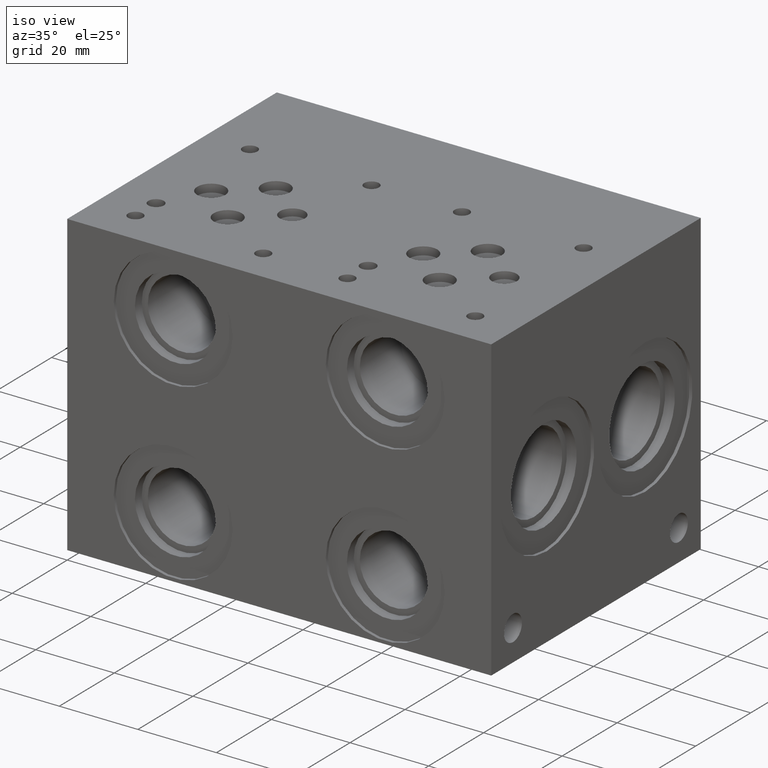
[diagram: clean part render]
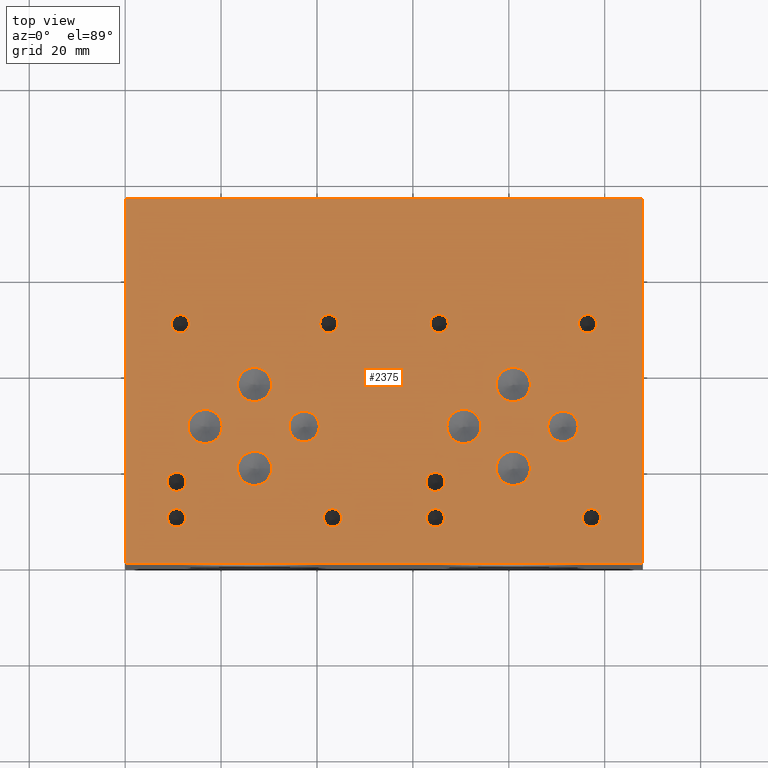
[diagram: tour spotlight — one face highlighted and labeled with its STEP entity id]
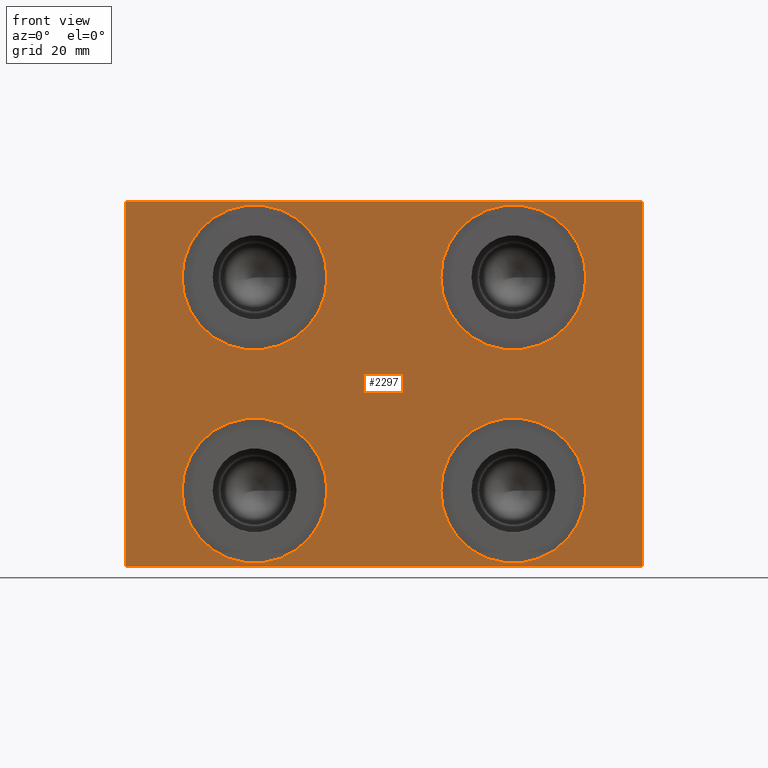
[diagram: tour spotlight — one face highlighted and labeled with its STEP entity id]
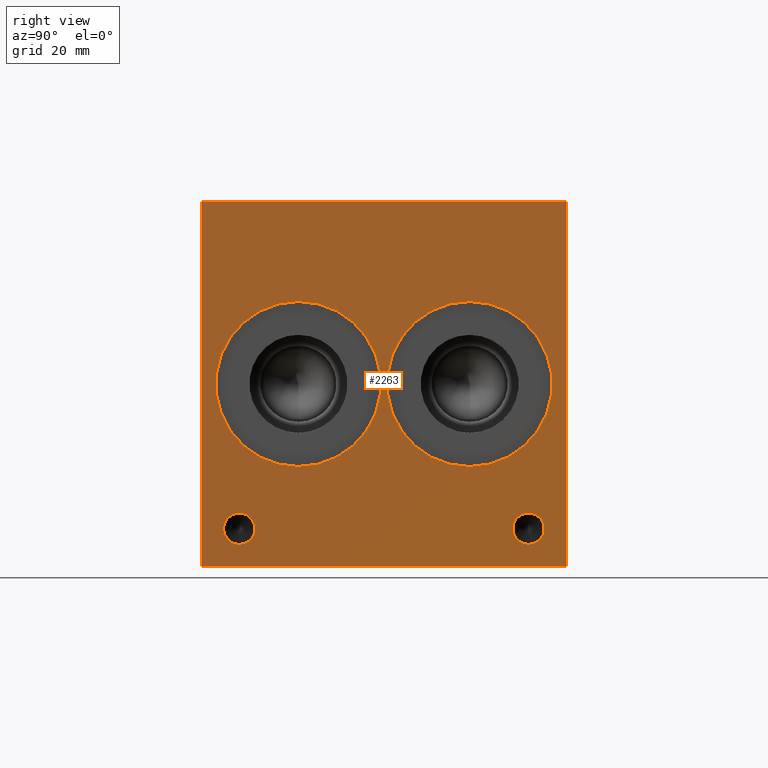
[diagram: tour spotlight — one face highlighted and labeled with its STEP entity id]
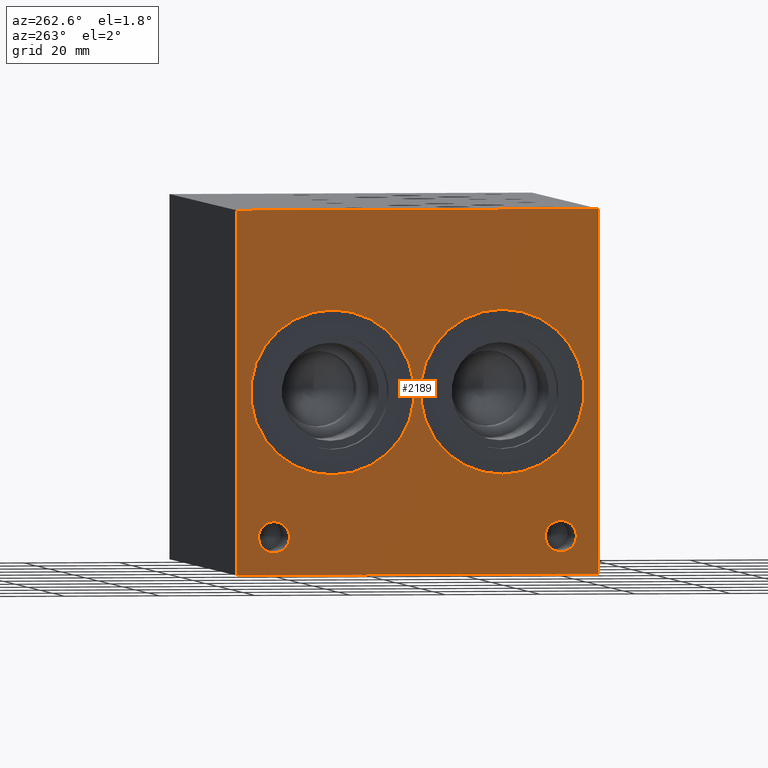
[diagram: tour spotlight — one face highlighted and labeled with its STEP entity id]
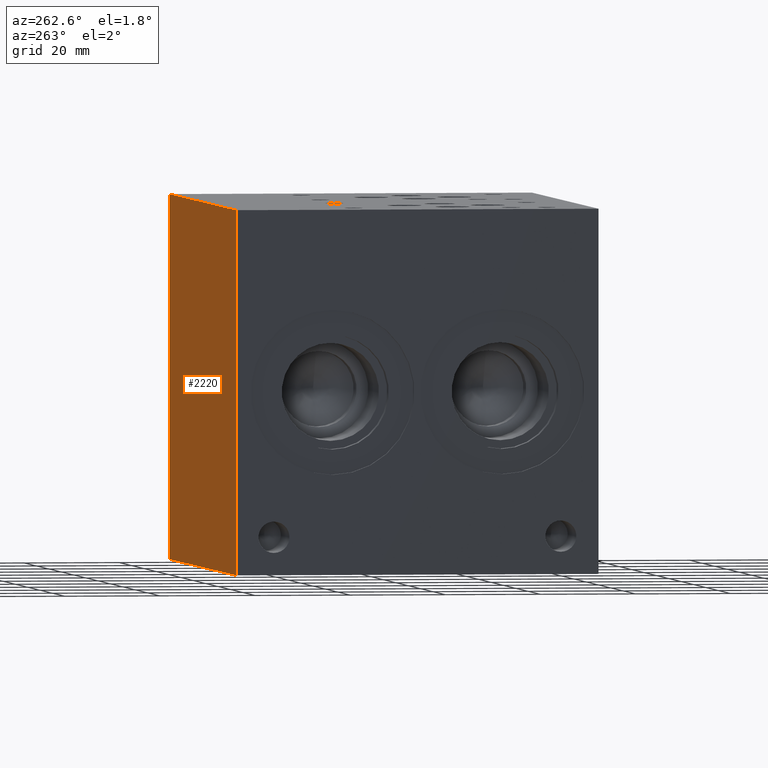
[diagram: tour spotlight — one face highlighted and labeled with its STEP entity id]
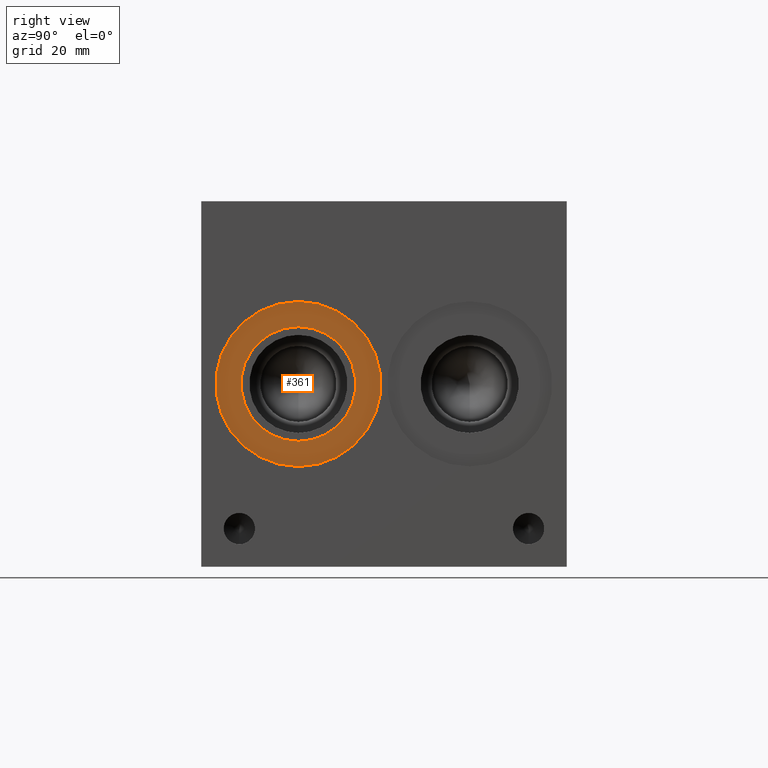
[diagram: tour spotlight — one face highlighted and labeled with its STEP entity id]
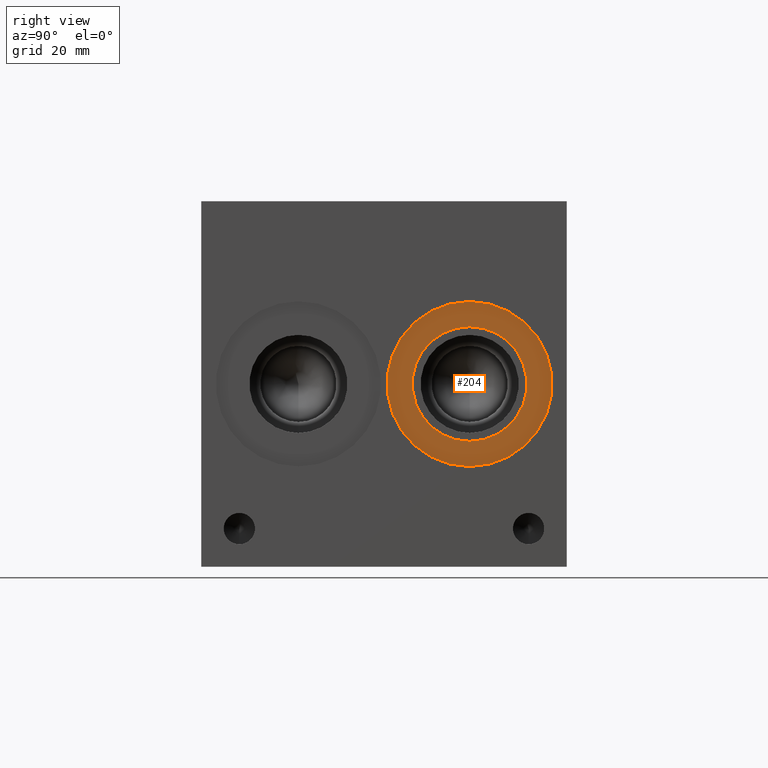
[diagram: tour spotlight — one face highlighted and labeled with its STEP entity id]
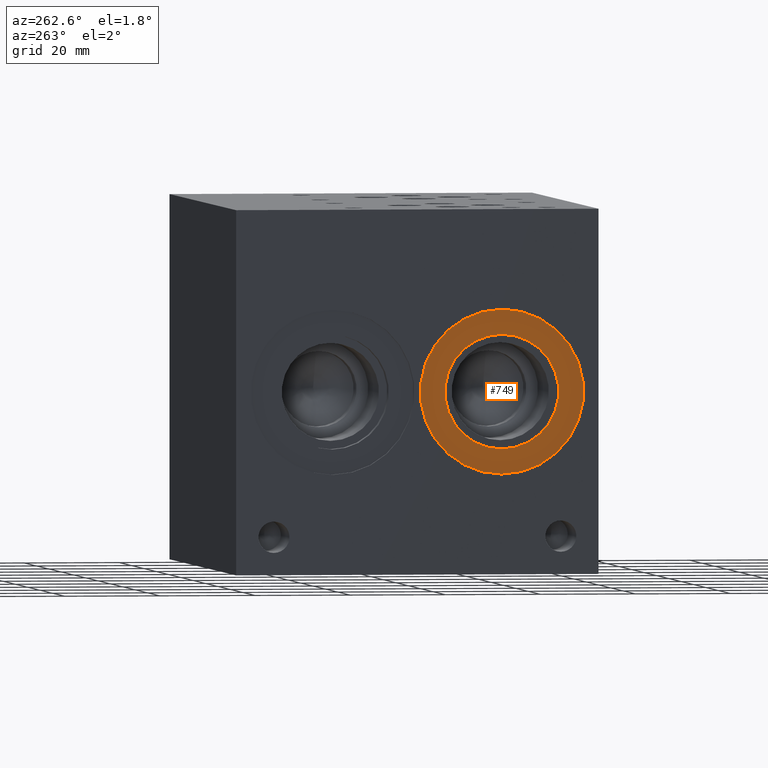
[diagram: tour spotlight — one face highlighted and labeled with its STEP entity id]
A machine part: a face-by-face anatomy tour. The part has 114 B-rep faces; the first image is the clean iso view, then the 8 largest visible faces are spotlighted one at a time (largest first), each with its STEP entity span.

Face 1 — top view, entity #2375. In plain terms, the highlighted planar face has unit normal (0, 0, 1).
Definition (entity closure, byte-faithful):
#1494=CARTESIAN_POINT('',(84.518500000000003,19.837400000000002,76.200000000000017));
#1495=VERTEX_POINT('',#1494);
#1496=CARTESIAN_POINT('',(80.949799999999996,19.837400000000002,76.200000000000017));
#1497=DIRECTION('',(0.0,0.0,-1.0));
#1498=DIRECTION('',(1.0,0.0,0.0));
#1499=AXIS2_PLACEMENT_3D('',#1496,#1497,#1498);
#1500=CIRCLE('',#1499,3.568700000000007);
#1501=EDGE_CURVE('',#1495,#1495,#1500,.T.);
#1531=CARTESIAN_POINT('',(84.518500000000003,37.312600000000003,76.200000000000017));
#1532=VERTEX_POINT('',#1531);
#1533=CARTESIAN_POINT('',(80.949799999999996,37.312600000000003,76.200000000000017));
#1534=DIRECTION('',(0.0,0.0,-1.0));
#1535=DIRECTION('',(1.0,0.0,0.0));
#1536=AXIS2_PLACEMENT_3D('',#1533,#1534,#1535);
#1537=CIRCLE('',#1536,3.568700000000007);
#1538=EDGE_CURVE('',#1532,#1532,#1537,.T.);
#1568=CARTESIAN_POINT('',(94.462600000000009,28.574999999999999,76.200000000000017));
#1569=VERTEX_POINT('',#1568);
#1570=CARTESIAN_POINT('',(91.287599999999998,28.574999999999999,76.200000000000017));
#1571=DIRECTION('',(0.0,0.0,-1.0));
#1572=DIRECTION('',(1.0,0.0,0.0));
#1573=AXIS2_PLACEMENT_3D('',#1570,#1571,#1572);
#1574=CIRCLE('',#1573,3.175000000000008);
#1575=EDGE_CURVE('',#1569,#1569,#1574,.T.);
#1605=CARTESIAN_POINT('',(74.206099999999992,28.574999999999999,76.200000000000017));
#1606=VERTEX_POINT('',#1605);
#1607=CARTESIAN_POINT('',(70.6374,28.574999999999999,76.200000000000017));
#1608=DIRECTION('',(0.0,0.0,-1.0));
#1609=DIRECTION('',(1.0,0.0,0.0));
#1610=AXIS2_PLACEMENT_3D('',#1607,#1608,#1609);
#1611=CIRCLE('',#1610,3.568699999999998);
#1612=EDGE_CURVE('',#1606,#1606,#1611,.T.);
#1642=CARTESIAN_POINT('',(66.675000000000011,17.018000000000001,76.200000000000017));
#1643=VERTEX_POINT('',#1642);
#1644=CARTESIAN_POINT('',(64.693799999999996,17.018000000000001,76.200000000000017));
#1645=DIRECTION('',(0.0,0.0,-1.0));
#1646=DIRECTION('',(1.0,0.0,0.0));
#1647=AXIS2_PLACEMENT_3D('',#1644,#1645,#1646);
#1648=CIRCLE('',#1647,1.981200000000003);
#1649=EDGE_CURVE('',#1643,#1643,#1648,.T.);
#1679=CARTESIAN_POINT('',(66.586100000000002,9.525000000000002,76.200000000000017));
#1680=VERTEX_POINT('',#1679);
#1681=CARTESIAN_POINT('',(64.693799999999996,9.525000000000002,76.200000000000017));
#1682=DIRECTION('',(0.0,0.0,-1.0));
#1683=DIRECTION('',(1.0,0.0,0.0));
#1684=AXIS2_PLACEMENT_3D('',#1681,#1682,#1683);
#1685=CIRCLE('',#1684,1.892300000000002);
#1686=EDGE_CURVE('',#1680,#1680,#1685,.T.);
#1716=CARTESIAN_POINT('',(99.123500000000021,9.525000000000002,76.200000000000017));
#1717=VERTEX_POINT('',#1716);
#1718=CARTESIAN_POINT('',(97.231200000000015,9.525000000000002,76.200000000000017));
#1719=DIRECTION('',(0.0,0.0,-1.0));
#1720=DIRECTION('',(1.0,0.0,0.0));
#1721=AXIS2_PLACEMENT_3D('',#1718,#1719,#1720);
#1722=CIRCLE('',#1721,1.892300000000002);
#1723=EDGE_CURVE('',#1717,#1717,#1722,.T.);
#1753=CARTESIAN_POINT('',(98.336100000000002,50.012600000000006,76.200000000000017));
#1754=VERTEX_POINT('',#1753);
#1755=CARTESIAN_POINT('',(96.443799999999996,50.012600000000006,76.200000000000017));
#1756=DIRECTION('',(0.0,0.0,-1.0));
#1757=DIRECTION('',(1.0,0.0,0.0));
#1758=AXIS2_PLACEMENT_3D('',#1755,#1756,#1757);
#1759=CIRCLE('',#1758,1.892300000000002);
#1760=EDGE_CURVE('',#1754,#1754,#1759,.T.);
#1790=CARTESIAN_POINT('',(67.373500000000007,50.012600000000006,76.200000000000017));
#1791=VERTEX_POINT('',#1790);
#1792=CARTESIAN_POINT('',(65.481200000000001,50.012600000000006,76.200000000000017));
#1793=DIRECTION('',(0.0,0.0,-1.0));
#1794=DIRECTION('',(1.0,0.0,0.0));
#1795=AXIS2_PLACEMENT_3D('',#1792,#1793,#1794);
#1796=CIRCLE('',#1795,1.892300000000002);
#1797=EDGE_CURVE('',#1791,#1791,#1796,.T.);
#1827=CARTESIAN_POINT('',(30.543500000000002,19.837400000000002,76.200000000000017));
#1828=VERTEX_POINT('',#1827);
#1829=CARTESIAN_POINT('',(26.974800000000002,19.837400000000002,76.200000000000017));
#1830=DIRECTION('',(0.0,0.0,-1.0));
#1831=DIRECTION('',(1.0,0.0,0.0));
#1832=AXIS2_PLACEMENT_3D('',#1829,#1830,#1831);
#1833=CIRCLE('',#1832,3.568700000000002);
#1834=EDGE_CURVE('',#1828,#1828,#1833,.T.);
#1864=CARTESIAN_POINT('',(30.543500000000002,37.312600000000003,76.200000000000017));
#1865=VERTEX_POINT('',#1864);
#1866=CARTESIAN_POINT('',(26.974800000000002,37.312600000000003,76.200000000000017));
#1867=DIRECTION('',(0.0,0.0,-1.0));
#1868=DIRECTION('',(1.0,0.0,0.0));
#1869=AXIS2_PLACEMENT_3D('',#1866,#1867,#1868);
#1870=CIRCLE('',#1869,3.568700000000002);
#1871=EDGE_CURVE('',#1865,#1865,#1870,.T.);
#1901=CARTESIAN_POINT('',(40.487600000000008,28.574999999999999,76.200000000000017));
#1902=VERTEX_POINT('',#1901);
#1903=CARTESIAN_POINT('',(37.312600000000003,28.574999999999999,76.200000000000017));
#1904=DIRECTION('',(0.0,0.0,-1.0));
#1905=DIRECTION('',(1.0,0.0,0.0));
#1906=AXIS2_PLACEMENT_3D('',#1903,#1904,#1905);
#1907=CIRCLE('',#1906,3.174999999999999);
#1908=EDGE_CURVE('',#1902,#1902,#1907,.T.);
#1938=CARTESIAN_POINT('',(20.231099999999998,28.574999999999999,76.200000000000017));
#1939=VERTEX_POINT('',#1938);
#1940=CARTESIAN_POINT('',(16.662400000000002,28.574999999999999,76.200000000000017));
#1941=DIRECTION('',(0.0,0.0,-1.0));
#1942=DIRECTION('',(1.0,0.0,0.0));
#1943=AXIS2_PLACEMENT_3D('',#1940,#1941,#1942);
#1944=CIRCLE('',#1943,3.568699999999998);
#1945=EDGE_CURVE('',#1939,#1939,#1944,.T.);
#1975=CARTESIAN_POINT('',(12.699999999999999,17.018000000000001,76.200000000000017));
#1976=VERTEX_POINT('',#1975);
#1977=CARTESIAN_POINT('',(10.7188,17.018000000000001,76.200000000000017));
#1978=DIRECTION('',(0.0,0.0,-1.0));
#1979=DIRECTION('',(1.0,0.0,0.0));
#1980=AXIS2_PLACEMENT_3D('',#1977,#1978,#1979);
#1981=CIRCLE('',#1980,1.981200000000001);
#1982=EDGE_CURVE('',#1976,#1976,#1981,.T.);
#2012=CARTESIAN_POINT('',(12.6111,9.525000000000002,76.200000000000017));
#2013=VERTEX_POINT('',#2012);
#2014=CARTESIAN_POINT('',(10.7188,9.525000000000002,76.200000000000017));
#2015=DIRECTION('',(0.0,0.0,-1.0));
#2016=DIRECTION('',(1.0,0.0,0.0));
#2017=AXIS2_PLACEMENT_3D('',#2014,#2015,#2016);
#2018=CIRCLE('',#2017,1.8923);
#2019=EDGE_CURVE('',#2013,#2013,#2018,.T.);
#2049=CARTESIAN_POINT('',(45.148499999999999,9.525000000000002,76.200000000000017));
#2050=VERTEX_POINT('',#2049);
#2051=CARTESIAN_POINT('',(43.2562,9.525000000000002,76.200000000000017));
#2052=DIRECTION('',(0.0,0.0,-1.0));
#2053=DIRECTION('',(1.0,0.0,0.0));
#2054=AXIS2_PLACEMENT_3D('',#2051,#2052,#2053);
#2055=CIRCLE('',#2054,1.892300000000002);
#2056=EDGE_CURVE('',#2050,#2050,#2055,.T.);
#2086=CARTESIAN_POINT('',(44.3611,50.012600000000006,76.200000000000017));
#2087=VERTEX_POINT('',#2086);
#2088=CARTESIAN_POINT('',(42.468800000000002,50.012600000000006,76.200000000000017));
#2089=DIRECTION('',(0.0,0.0,-1.0));
#2090=DIRECTION('',(1.0,0.0,0.0));
#2091=AXIS2_PLACEMENT_3D('',#2088,#2089,#2090);
#2092=CIRCLE('',#2091,1.892300000000002);
#2093=EDGE_CURVE('',#2087,#2087,#2092,.T.);
#2123=CARTESIAN_POINT('',(13.3985,50.012600000000006,76.200000000000017));
#2124=VERTEX_POINT('',#2123);
#2125=CARTESIAN_POINT('',(11.5062,50.012600000000006,76.200000000000017));
#2126=DIRECTION('',(0.0,0.0,-1.0));
#2127=DIRECTION('',(1.0,0.0,0.0));
#2128=AXIS2_PLACEMENT_3D('',#2125,#2126,#2127);
#2129=CIRCLE('',#2128,1.8923);
#2130=EDGE_CURVE('',#2124,#2124,#2129,.T.);
#2143=CARTESIAN_POINT('',(0.0,0.0,76.200000000000017));
#2144=VERTEX_POINT('',#2143);
#2145=CARTESIAN_POINT('',(0.0,76.200000000000017,76.200000000000017));
#2146=VERTEX_POINT('',#2145);
#2147=CARTESIAN_POINT('',(0.0,0.0,76.200000000000017));
#2148=DIRECTION('',(0.0,1.0,0.0));
#2149=VECTOR('',#2148,76.200000000000017);
#2150=LINE('',#2147,#2149);
#2151=EDGE_CURVE('',#2144,#2146,#2150,.T.);
#2195=CARTESIAN_POINT('',(107.95000000000002,76.200000000000017,76.200000000000017));
#2196=VERTEX_POINT('',#2195);
#2197=CARTESIAN_POINT('',(0.0,76.200000000000017,76.200000000000017));
#2198=DIRECTION('',(1.0,0.0,0.0));
#2199=VECTOR('',#2198,107.95000000000002);
#2200=LINE('',#2197,#2199);
#2201=EDGE_CURVE('',#2146,#2196,#2200,.T.);
#2226=CARTESIAN_POINT('',(107.95000000000002,0.0,76.200000000000017));
#2227=VERTEX_POINT('',#2226);
#2228=CARTESIAN_POINT('',(107.95000000000002,76.200000000000017,76.200000000000017));
#2229=DIRECTION('',(0.0,-1.0,0.0));
#2230=VECTOR('',#2229,76.200000000000017);
#2231=LINE('',#2228,#2230);
#2232=EDGE_CURVE('',#2196,#2227,#2231,.T.);
#2269=CARTESIAN_POINT('',(107.95000000000002,0.0,76.200000000000017));
#2270=DIRECTION('',(-1.0,0.0,0.0));
#2271=VECTOR('',#2270,107.95000000000002);
#2272=LINE('',#2269,#2271);
#2273=EDGE_CURVE('',#2227,#2144,#2272,.T.);
#2310=CARTESIAN_POINT('',(53.975000000000009,38.100000000000016,76.200000000000017));
#2311=DIRECTION('',(0.0,0.0,1.0));
#2312=DIRECTION('',(1.0,0.0,0.0));
#2313=AXIS2_PLACEMENT_3D('',#2310,#2311,#2312);
#2314=PLANE('',#2313);
#2315=ORIENTED_EDGE('',*,*,#2151,.F.);
#2316=ORIENTED_EDGE('',*,*,#2273,.F.);
#2317=ORIENTED_EDGE('',*,*,#2232,.F.);
#2318=ORIENTED_EDGE('',*,*,#2201,.F.);
#2319=EDGE_LOOP('',(#2315,#2316,#2317,#2318));
#2320=FACE_OUTER_BOUND('',#2319,.T.);
#2321=ORIENTED_EDGE('',*,*,#1501,.T.);
#2322=EDGE_LOOP('',(#2321));
#2323=FACE_BOUND('',#2322,.T.);
#2324=ORIENTED_EDGE('',*,*,#1538,.T.);
#2325=EDGE_LOOP('',(#2324));
#2326=FACE_BOUND('',#2325,.T.);
#2327=ORIENTED_EDGE('',*,*,#1575,.T.);
#2328=EDGE_LOOP('',(#2327));
#2329=FACE_BOUND('',#2328,.T.);
#2330=ORIENTED_EDGE('',*,*,#1612,.T.);
#2331=EDGE_LOOP('',(#2330));
#2332=FACE_BOUND('',#2331,.T.);
#2333=ORIENTED_EDGE('',*,*,#1649,.T.);
#2334=EDGE_LOOP('',(#2333));
#2335=FACE_BOUND('',#2334,.T.);
#2336=ORIENTED_EDGE('',*,*,#1686,.T.);
#2337=EDGE_LOOP('',(#2336));
#2338=FACE_BOUND('',#2337,.T.);
#2339=ORIENTED_EDGE('',*,*,#1723,.T.);
#2340=EDGE_LOOP('',(#2339));
#2341=FACE_BOUND('',#2340,.T.);
#2342=ORIENTED_EDGE('',*,*,#1760,.T.);
#2343=EDGE_LOOP('',(#2342));
#2344=FACE_BOUND('',#2343,.T.);
#2345=ORIENTED_EDGE('',*,*,#1797,.T.);
#2346=EDGE_LOOP('',(#2345));
#2347=FACE_BOUND('',#2346,.T.);
#2348=ORIENTED_EDGE('',*,*,#1834,.T.);
#2349=EDGE_LOOP('',(#2348));
#2350=FACE_BOUND('',#2349,.T.);
#2351=ORIENTED_EDGE('',*,*,#1871,.T.);
#2352=EDGE_LOOP('',(#2351));
#2353=FACE_BOUND('',#2352,.T.);
#2354=ORIENTED_EDGE('',*,*,#1908,.T.);
#2355=EDGE_LOOP('',(#2354));
#2356=FACE_BOUND('',#2355,.T.);
#2357=ORIENTED_EDGE('',*,*,#1945,.T.);
#2358=EDGE_LOOP('',(#2357));
#2359=FACE_BOUND('',#2358,.T.);
#2360=ORIENTED_EDGE('',*,*,#1982,.T.);
#2361=EDGE_LOOP('',(#2360));
#2362=FACE_BOUND('',#2361,.T.);
#2363=ORIENTED_EDGE('',*,*,#2019,.T.);
#2364=EDGE_LOOP('',(#2363));
#2365=FACE_BOUND('',#2364,.T.);
#2366=ORIENTED_EDGE('',*,*,#2056,.T.);
#2367=EDGE_LOOP('',(#2366));
#2368=FACE_BOUND('',#2367,.T.);
#2369=ORIENTED_EDGE('',*,*,#2093,.T.);
#2370=EDGE_LOOP('',(#2369));
#2371=FACE_BOUND('',#2370,.T.);
#2372=ORIENTED_EDGE('',*,*,#2130,.T.);
#2373=EDGE_LOOP('',(#2372));
#2374=FACE_BOUND('',#2373,.T.);
#2375=ADVANCED_FACE('',(#2320,#2323,#2326,#2329,#2332,#2335,#2338,#2341,#2344,#2347,#2350,#2353,#2356,#2359,#2362,#2365,#2368,#2371,#2374),#2314,.T.);

Face 2 — front view, entity #2297. In plain terms, the highlighted planar face has unit normal (0, -1, 0).
Definition (entity closure, byte-faithful):
#986=CARTESIAN_POINT('',(96.075500000000005,0.0,15.875000000000002));
#987=VERTEX_POINT('',#986);
#988=CARTESIAN_POINT('',(80.949799999999996,0.0,15.875000000000002));
#989=DIRECTION('',(0.0,1.0,0.0));
#990=DIRECTION('',(1.0,0.0,0.0));
#991=AXIS2_PLACEMENT_3D('',#988,#989,#990);
#992=CIRCLE('',#991,15.125700000000002);
#993=EDGE_CURVE('',#987,#987,#992,.T.);
#1143=CARTESIAN_POINT('',(42.100500000000011,0.0,15.875000000000002));
#1144=VERTEX_POINT('',#1143);
#1145=CARTESIAN_POINT('',(26.974800000000002,0.0,15.875000000000002));
#1146=DIRECTION('',(0.0,1.0,0.0));
#1147=DIRECTION('',(1.0,0.0,0.0));
#1148=AXIS2_PLACEMENT_3D('',#1145,#1146,#1147);
#1149=CIRCLE('',#1148,15.125700000000005);
#1150=EDGE_CURVE('',#1144,#1144,#1149,.T.);
#1300=CARTESIAN_POINT('',(96.075500000000005,0.0,60.325000000000003));
#1301=VERTEX_POINT('',#1300);
#1302=CARTESIAN_POINT('',(80.949799999999996,0.0,60.325000000000003));
#1303=DIRECTION('',(0.0,1.0,0.0));
#1304=DIRECTION('',(1.0,0.0,0.0));
#1305=AXIS2_PLACEMENT_3D('',#1302,#1303,#1304);
#1306=CIRCLE('',#1305,15.125700000000002);
#1307=EDGE_CURVE('',#1301,#1301,#1306,.T.);
#1457=CARTESIAN_POINT('',(42.100500000000011,0.0,60.325000000000003));
#1458=VERTEX_POINT('',#1457);
#1459=CARTESIAN_POINT('',(26.974800000000002,0.0,60.325000000000003));
#1460=DIRECTION('',(0.0,1.0,0.0));
#1461=DIRECTION('',(1.0,0.0,0.0));
#1462=AXIS2_PLACEMENT_3D('',#1459,#1460,#1461);
#1463=CIRCLE('',#1462,15.125700000000005);
#1464=EDGE_CURVE('',#1458,#1458,#1463,.T.);
#2143=CARTESIAN_POINT('',(0.0,0.0,76.200000000000017));
#2144=VERTEX_POINT('',#2143);
#2161=CARTESIAN_POINT('',(0.0,0.0,0.0));
#2162=VERTEX_POINT('',#2161);
#2169=CARTESIAN_POINT('',(0.0,0.0,0.0));
#2170=DIRECTION('',(0.0,0.0,1.0));
#2171=VECTOR('',#2170,76.200000000000017);
#2172=LINE('',#2169,#2171);
#2173=EDGE_CURVE('',#2162,#2144,#2172,.T.);
#2226=CARTESIAN_POINT('',(107.95000000000002,0.0,76.200000000000017));
#2227=VERTEX_POINT('',#2226);
#2234=CARTESIAN_POINT('',(107.95000000000002,0.0,0.0));
#2235=VERTEX_POINT('',#2234);
#2236=CARTESIAN_POINT('',(107.95000000000002,0.0,0.0));
#2237=DIRECTION('',(0.0,0.0,1.0));
#2238=VECTOR('',#2237,76.200000000000017);
#2239=LINE('',#2236,#2238);
#2240=EDGE_CURVE('',#2235,#2227,#2239,.T.);
#2264=CARTESIAN_POINT('',(107.95000000000002,0.0,0.0));
#2265=DIRECTION('',(0.0,-1.0,0.0));
#2266=DIRECTION('',(0.0,0.0,-1.0));
#2267=AXIS2_PLACEMENT_3D('',#2264,#2265,#2266);
#2268=PLANE('',#2267);
#2269=CARTESIAN_POINT('',(107.95000000000002,0.0,76.200000000000017));
#2270=DIRECTION('',(-1.0,0.0,0.0));
#2271=VECTOR('',#2270,107.95000000000002);
#2272=LINE('',#2269,#2271);
#2273=EDGE_CURVE('',#2227,#2144,#2272,.T.);
#2274=ORIENTED_EDGE('',*,*,#2273,.T.);
#2275=ORIENTED_EDGE('',*,*,#2173,.F.);
#2276=CARTESIAN_POINT('',(0.0,0.0,0.0));
#2277=DIRECTION('',(1.0,0.0,0.0));
#2278=VECTOR('',#2277,107.95000000000002);
#2279=LINE('',#2276,#2278);
#2280=EDGE_CURVE('',#2162,#2235,#2279,.T.);
#2281=ORIENTED_EDGE('',*,*,#2280,.T.);
#2282=ORIENTED_EDGE('',*,*,#2240,.T.);
#2283=EDGE_LOOP('',(#2274,#2275,#2281,#2282));
#2284=FACE_OUTER_BOUND('',#2283,.T.);
#2285=ORIENTED_EDGE('',*,*,#993,.T.);
#2286=EDGE_LOOP('',(#2285));
#2287=FACE_BOUND('',#2286,.T.);
#2288=ORIENTED_EDGE('',*,*,#1150,.T.);
#2289=EDGE_LOOP('',(#2288));
#2290=FACE_BOUND('',#2289,.T.);
#2291=ORIENTED_EDGE('',*,*,#1307,.T.);
#2292=EDGE_LOOP('',(#2291));
#2293=FACE_BOUND('',#2292,.T.);
#2294=ORIENTED_EDGE('',*,*,#1464,.T.);
#2295=EDGE_LOOP('',(#2294));
#2296=FACE_BOUND('',#2295,.T.);
#2297=ADVANCED_FACE('',(#2284,#2287,#2290,#2293,#2296),#2268,.T.);

Face 3 — right view, entity #2263. In plain terms, the highlighted planar face has unit normal (1, 0, 0).
Definition (entity closure, byte-faithful):
#210=CARTESIAN_POINT('',(107.95000000000002,55.956200000000003,20.891500000000001));
#211=VERTEX_POINT('',#210);
#212=CARTESIAN_POINT('',(107.95000000000002,55.956200000000003,38.100000000000009));
#213=DIRECTION('',(-1.0,0.0,0.0));
#214=DIRECTION('',(0.0,0.0,-1.0));
#215=AXIS2_PLACEMENT_3D('',#212,#213,#214);
#216=CIRCLE('',#215,17.208500000000004);
#217=EDGE_CURVE('',#211,#211,#216,.T.);
#367=CARTESIAN_POINT('',(107.95000000000002,20.243800000000004,20.891500000000001));
#368=VERTEX_POINT('',#367);
#369=CARTESIAN_POINT('',(107.95000000000002,20.243800000000004,38.100000000000009));
#370=DIRECTION('',(-1.0,0.0,0.0));
#371=DIRECTION('',(0.0,0.0,-1.0));
#372=AXIS2_PLACEMENT_3D('',#369,#370,#371);
#373=CIRCLE('',#372,17.208500000000004);
#374=EDGE_CURVE('',#368,#368,#373,.T.);
#404=CARTESIAN_POINT('',(107.95000000000002,68.249799999999993,4.660900000000001));
#405=VERTEX_POINT('',#404);
#406=CARTESIAN_POINT('',(107.95000000000002,68.249799999999993,7.924800000000001));
#407=DIRECTION('',(-1.0,0.0,0.0));
#408=DIRECTION('',(0.0,0.0,-1.0));
#409=AXIS2_PLACEMENT_3D('',#406,#407,#408);
#410=CIRCLE('',#409,3.2639);
#411=EDGE_CURVE('',#405,#405,#410,.T.);
#441=CARTESIAN_POINT('',(107.95000000000002,7.924800000000001,4.660900000000001));
#442=VERTEX_POINT('',#441);
#443=CARTESIAN_POINT('',(107.95000000000002,7.924800000000001,7.924800000000001));
#444=DIRECTION('',(-1.0,0.0,0.0));
#445=DIRECTION('',(0.0,0.0,-1.0));
#446=AXIS2_PLACEMENT_3D('',#443,#444,#445);
#447=CIRCLE('',#446,3.2639);
#448=EDGE_CURVE('',#442,#442,#447,.T.);
#2195=CARTESIAN_POINT('',(107.95000000000002,76.200000000000017,76.200000000000017));
#2196=VERTEX_POINT('',#2195);
#2203=CARTESIAN_POINT('',(107.95000000000002,76.200000000000017,0.0));
#2204=VERTEX_POINT('',#2203);
#2205=CARTESIAN_POINT('',(107.95000000000002,76.200000000000017,0.0));
#2206=DIRECTION('',(0.0,0.0,1.0));
#2207=VECTOR('',#2206,76.200000000000017);
#2208=LINE('',#2205,#2207);
#2209=EDGE_CURVE('',#2204,#2196,#2208,.T.);
#2221=CARTESIAN_POINT('',(107.95000000000002,76.200000000000017,0.0));
#2222=DIRECTION('',(1.0,0.0,0.0));
#2223=DIRECTION('',(0.0,0.0,-1.0));
#2224=AXIS2_PLACEMENT_3D('',#2221,#2222,#2223);
#2225=PLANE('',#2224);
#2226=CARTESIAN_POINT('',(107.95000000000002,0.0,76.200000000000017));
#2227=VERTEX_POINT('',#2226);
#2228=CARTESIAN_POINT('',(107.95000000000002,76.200000000000017,76.200000000000017));
#2229=DIRECTION('',(0.0,-1.0,0.0));
#2230=VECTOR('',#2229,76.200000000000017);
#2231=LINE('',#2228,#2230);
#2232=EDGE_CURVE('',#2196,#2227,#2231,.T.);
#2233=ORIENTED_EDGE('',*,*,#2232,.T.);
#2234=CARTESIAN_POINT('',(107.95000000000002,0.0,0.0));
#2235=VERTEX_POINT('',#2234);
#2236=CARTESIAN_POINT('',(107.95000000000002,0.0,0.0));
#2237=DIRECTION('',(0.0,0.0,1.0));
#2238=VECTOR('',#2237,76.200000000000017);
#2239=LINE('',#2236,#2238);
#2240=EDGE_CURVE('',#2235,#2227,#2239,.T.);
#2241=ORIENTED_EDGE('',*,*,#2240,.F.);
#2242=CARTESIAN_POINT('',(107.95000000000002,0.0,0.0));
#2243=DIRECTION('',(0.0,1.0,0.0));
#2244=VECTOR('',#2243,76.200000000000017);
#2245=LINE('',#2242,#2244);
#2246=EDGE_CURVE('',#2235,#2204,#2245,.T.);
#2247=ORIENTED_EDGE('',*,*,#2246,.T.);
#2248=ORIENTED_EDGE('',*,*,#2209,.T.);
#2249=EDGE_LOOP('',(#2233,#2241,#2247,#2248));
#2250=FACE_OUTER_BOUND('',#2249,.T.);
#2251=ORIENTED_EDGE('',*,*,#217,.T.);
#2252=EDGE_LOOP('',(#2251));
#2253=FACE_BOUND('',#2252,.T.);
#2254=ORIENTED_EDGE('',*,*,#374,.T.);
#2255=EDGE_LOOP('',(#2254));
#2256=FACE_BOUND('',#2255,.T.);
#2257=ORIENTED_EDGE('',*,*,#411,.T.);
#2258=EDGE_LOOP('',(#2257));
#2259=FACE_BOUND('',#2258,.T.);
#2260=ORIENTED_EDGE('',*,*,#448,.T.);
#2261=EDGE_LOOP('',(#2260));
#2262=FACE_BOUND('',#2261,.T.);
#2263=ADVANCED_FACE('',(#2250,#2253,#2256,#2259,#2262),#2225,.T.);

Face 4 — auxiliary view, entity #2189. In plain terms, the highlighted planar face has unit normal (-1, 0, 0).
Definition (entity closure, byte-faithful):
#598=CARTESIAN_POINT('',(0.0,55.956200000000003,55.308500000000009));
#599=VERTEX_POINT('',#598);
#600=CARTESIAN_POINT('',(0.0,55.956200000000003,38.100000000000009));
#601=DIRECTION('',(1.0,0.0,0.0));
#602=DIRECTION('',(0.0,0.0,1.0));
#603=AXIS2_PLACEMENT_3D('',#600,#601,#602);
#604=CIRCLE('',#603,17.208500000000004);
#605=EDGE_CURVE('',#599,#599,#604,.T.);
#755=CARTESIAN_POINT('',(0.0,20.243800000000004,55.308500000000009));
#756=VERTEX_POINT('',#755);
#757=CARTESIAN_POINT('',(0.0,20.243800000000004,38.100000000000009));
#758=DIRECTION('',(1.0,0.0,0.0));
#759=DIRECTION('',(0.0,0.0,1.0));
#760=AXIS2_PLACEMENT_3D('',#757,#758,#759);
#761=CIRCLE('',#760,17.208500000000004);
#762=EDGE_CURVE('',#756,#756,#761,.T.);
#792=CARTESIAN_POINT('',(0.0,68.249799999999993,11.188700000000001));
#793=VERTEX_POINT('',#792);
#794=CARTESIAN_POINT('',(0.0,68.249799999999993,7.924800000000001));
#795=DIRECTION('',(1.0,0.0,0.0));
#796=DIRECTION('',(0.0,0.0,1.0));
#797=AXIS2_PLACEMENT_3D('',#794,#795,#796);
#798=CIRCLE('',#797,3.2639);
#799=EDGE_CURVE('',#793,#793,#798,.T.);
#829=CARTESIAN_POINT('',(0.0,7.924800000000001,11.188700000000001));
#830=VERTEX_POINT('',#829);
#831=CARTESIAN_POINT('',(0.0,7.924800000000001,7.924800000000001));
#832=DIRECTION('',(1.0,0.0,0.0));
#833=DIRECTION('',(0.0,0.0,1.0));
#834=AXIS2_PLACEMENT_3D('',#831,#832,#833);
#835=CIRCLE('',#834,3.2639);
#836=EDGE_CURVE('',#830,#830,#835,.T.);
#2138=CARTESIAN_POINT('',(0.0,0.0,0.0));
#2139=DIRECTION('',(-1.0,0.0,0.0));
#2140=DIRECTION('',(0.0,0.0,1.0));
#2141=AXIS2_PLACEMENT_3D('',#2138,#2139,#2140);
#2142=PLANE('',#2141);
#2143=CARTESIAN_POINT('',(0.0,0.0,76.200000000000017));
#2144=VERTEX_POINT('',#2143);
#2145=CARTESIAN_POINT('',(0.0,76.200000000000017,76.200000000000017));
#2146=VERTEX_POINT('',#2145);
#2147=CARTESIAN_POINT('',(0.0,0.0,76.200000000000017));
#2148=DIRECTION('',(0.0,1.0,0.0));
#2149=VECTOR('',#2148,76.200000000000017);
#2150=LINE('',#2147,#2149);
#2151=EDGE_CURVE('',#2144,#2146,#2150,.T.);
#2152=ORIENTED_EDGE('',*,*,#2151,.T.);
#2153=CARTESIAN_POINT('',(0.0,76.200000000000017,0.0));
#2154=VERTEX_POINT('',#2153);
#2155=CARTESIAN_POINT('',(0.0,76.200000000000017,0.0));
#2156=DIRECTION('',(0.0,0.0,1.0));
#2157=VECTOR('',#2156,76.200000000000017);
#2158=LINE('',#2155,#2157);
#2159=EDGE_CURVE('',#2154,#2146,#2158,.T.);
#2160=ORIENTED_EDGE('',*,*,#2159,.F.);
#2161=CARTESIAN_POINT('',(0.0,0.0,0.0));
#2162=VERTEX_POINT('',#2161);
#2163=CARTESIAN_POINT('',(0.0,76.200000000000017,0.0));
#2164=DIRECTION('',(0.0,-1.0,0.0));
#2165=VECTOR('',#2164,76.200000000000017);
#2166=LINE('',#2163,#2165);
#2167=EDGE_CURVE('',#2154,#2162,#2166,.T.);
#2168=ORIENTED_EDGE('',*,*,#2167,.T.);
#2169=CARTESIAN_POINT('',(0.0,0.0,0.0));
#2170=DIRECTION('',(0.0,0.0,1.0));
#2171=VECTOR('',#2170,76.200000000000017);
#2172=LINE('',#2169,#2171);
#2173=EDGE_CURVE('',#2162,#2144,#2172,.T.);
#2174=ORIENTED_EDGE('',*,*,#2173,.T.);
#2175=EDGE_LOOP('',(#2152,#2160,#2168,#2174));
#2176=FACE_OUTER_BOUND('',#2175,.T.);
#2177=ORIENTED_EDGE('',*,*,#605,.T.);
#2178=EDGE_LOOP('',(#2177));
#2179=FACE_BOUND('',#2178,.T.);
#2180=ORIENTED_EDGE('',*,*,#762,.T.);
#2181=EDGE_LOOP('',(#2180));
#2182=FACE_BOUND('',#2181,.T.);
#2183=ORIENTED_EDGE('',*,*,#799,.T.);
#2184=EDGE_LOOP('',(#2183));
#2185=FACE_BOUND('',#2184,.T.);
#2186=ORIENTED_EDGE('',*,*,#836,.T.);
#2187=EDGE_LOOP('',(#2186));
#2188=FACE_BOUND('',#2187,.T.);
#2189=ADVANCED_FACE('',(#2176,#2179,#2182,#2185,#2188),#2142,.T.);

Face 5 — auxiliary view, entity #2220. In plain terms, the highlighted planar face has unit normal (0, 1, 0).
Definition (entity closure, byte-faithful):
#2145=CARTESIAN_POINT('',(0.0,76.200000000000017,76.200000000000017));
#2146=VERTEX_POINT('',#2145);
#2153=CARTESIAN_POINT('',(0.0,76.200000000000017,0.0));
#2154=VERTEX_POINT('',#2153);
#2155=CARTESIAN_POINT('',(0.0,76.200000000000017,0.0));
#2156=DIRECTION('',(0.0,0.0,1.0));
#2157=VECTOR('',#2156,76.200000000000017);
#2158=LINE('',#2155,#2157);
#2159=EDGE_CURVE('',#2154,#2146,#2158,.T.);
#2190=CARTESIAN_POINT('',(0.0,76.200000000000017,0.0));
#2191=DIRECTION('',(0.0,1.0,0.0));
#2192=DIRECTION('',(0.0,0.0,1.0));
#2193=AXIS2_PLACEMENT_3D('',#2190,#2191,#2192);
#2194=PLANE('',#2193);
#2195=CARTESIAN_POINT('',(107.95000000000002,76.200000000000017,76.200000000000017));
#2196=VERTEX_POINT('',#2195);
#2197=CARTESIAN_POINT('',(0.0,76.200000000000017,76.200000000000017));
#2198=DIRECTION('',(1.0,0.0,0.0));
#2199=VECTOR('',#2198,107.95000000000002);
#2200=LINE('',#2197,#2199);
#2201=EDGE_CURVE('',#2146,#2196,#2200,.T.);
#2202=ORIENTED_EDGE('',*,*,#2201,.T.);
#2203=CARTESIAN_POINT('',(107.95000000000002,76.200000000000017,0.0));
#2204=VERTEX_POINT('',#2203);
#2205=CARTESIAN_POINT('',(107.95000000000002,76.200000000000017,0.0));
#2206=DIRECTION('',(0.0,0.0,1.0));
#2207=VECTOR('',#2206,76.200000000000017);
#2208=LINE('',#2205,#2207);
#2209=EDGE_CURVE('',#2204,#2196,#2208,.T.);
#2210=ORIENTED_EDGE('',*,*,#2209,.F.);
#2211=CARTESIAN_POINT('',(107.95000000000002,76.200000000000017,0.0));
#2212=DIRECTION('',(-1.0,0.0,0.0));
#2213=VECTOR('',#2212,107.95000000000002);
#2214=LINE('',#2211,#2213);
#2215=EDGE_CURVE('',#2204,#2154,#2214,.T.);
#2216=ORIENTED_EDGE('',*,*,#2215,.T.);
#2217=ORIENTED_EDGE('',*,*,#2159,.T.);
#2218=EDGE_LOOP('',(#2202,#2210,#2216,#2217));
#2219=FACE_OUTER_BOUND('',#2218,.T.);
#2220=ADVANCED_FACE('',(#2219),#2194,.T.);

Face 6 — right view, entity #361. In plain terms, the highlighted planar face has unit normal (-1, 0, 0).
Definition (entity closure, byte-faithful):
#327=CARTESIAN_POINT('',(107.16260000000003,20.243800000000004,26.149300000000004));
#328=VERTEX_POINT('',#327);
#329=CARTESIAN_POINT('',(107.16260000000003,20.243800000000004,38.100000000000009));
#330=DIRECTION('',(1.0,0.0,0.0));
#331=DIRECTION('',(0.0,0.0,-1.0));
#332=AXIS2_PLACEMENT_3D('',#329,#330,#331);
#333=CIRCLE('',#332,11.950700000000003);
#334=EDGE_CURVE('',#328,#328,#333,.T.);
#342=CARTESIAN_POINT('',(107.16260000000003,20.243800000000004,23.520400000000002));
#343=DIRECTION('',(-1.0,0.0,0.0));
#344=DIRECTION('',(0.0,0.0,1.0));
#345=AXIS2_PLACEMENT_3D('',#342,#343,#344);
#346=PLANE('',#345);
#347=CARTESIAN_POINT('',(107.16260000000003,20.243800000000004,20.891500000000001));
#348=VERTEX_POINT('',#347);
#349=CARTESIAN_POINT('',(107.16260000000003,20.243800000000004,38.100000000000009));
#350=DIRECTION('',(1.0,0.0,0.0));
#351=DIRECTION('',(0.0,0.0,-1.0));
#352=AXIS2_PLACEMENT_3D('',#349,#350,#351);
#353=CIRCLE('',#352,17.208500000000004);
#354=EDGE_CURVE('',#348,#348,#353,.T.);
#355=ORIENTED_EDGE('',*,*,#354,.T.);
#356=EDGE_LOOP('',(#355));
#357=FACE_OUTER_BOUND('',#356,.T.);
#358=ORIENTED_EDGE('',*,*,#334,.F.);
#359=EDGE_LOOP('',(#358));
#360=FACE_BOUND('',#359,.T.);
#361=ADVANCED_FACE('',(#357,#360),#346,.F.);

Face 7 — right view, entity #204. In plain terms, the highlighted planar face has unit normal (-1, 0, 0).
Definition (entity closure, byte-faithful):
#170=CARTESIAN_POINT('',(107.16260000000003,55.956200000000003,26.149300000000004));
#171=VERTEX_POINT('',#170);
#172=CARTESIAN_POINT('',(107.16260000000003,55.956200000000003,38.100000000000009));
#173=DIRECTION('',(1.0,0.0,0.0));
#174=DIRECTION('',(0.0,0.0,-1.0));
#175=AXIS2_PLACEMENT_3D('',#172,#173,#174);
#176=CIRCLE('',#175,11.950700000000003);
#177=EDGE_CURVE('',#171,#171,#176,.T.);
#185=CARTESIAN_POINT('',(107.16260000000003,55.956200000000003,23.520400000000002));
#186=DIRECTION('',(-1.0,0.0,0.0));
#187=DIRECTION('',(0.0,0.0,1.0));
#188=AXIS2_PLACEMENT_3D('',#185,#186,#187);
#189=PLANE('',#188);
#190=CARTESIAN_POINT('',(107.16260000000003,55.956200000000003,20.891500000000001));
#191=VERTEX_POINT('',#190);
#192=CARTESIAN_POINT('',(107.16260000000003,55.956200000000003,38.100000000000009));
#193=DIRECTION('',(1.0,0.0,0.0));
#194=DIRECTION('',(0.0,0.0,-1.0));
#195=AXIS2_PLACEMENT_3D('',#192,#193,#194);
#196=CIRCLE('',#195,17.208500000000004);
#197=EDGE_CURVE('',#191,#191,#196,.T.);
#198=ORIENTED_EDGE('',*,*,#197,.T.);
#199=EDGE_LOOP('',(#198));
#200=FACE_OUTER_BOUND('',#199,.T.);
#201=ORIENTED_EDGE('',*,*,#177,.F.);
#202=EDGE_LOOP('',(#201));
#203=FACE_BOUND('',#202,.T.);
#204=ADVANCED_FACE('',(#200,#203),#189,.F.);

Face 8 — auxiliary view, entity #749. In plain terms, the highlighted planar face has unit normal (1, 0, 0).
Definition (entity closure, byte-faithful):
#715=CARTESIAN_POINT('',(0.7874,20.243800000000004,50.050700000000006));
#716=VERTEX_POINT('',#715);
#717=CARTESIAN_POINT('',(0.7874,20.243800000000004,38.100000000000009));
#718=DIRECTION('',(-1.0,0.0,0.0));
#719=DIRECTION('',(0.0,0.0,1.0));
#720=AXIS2_PLACEMENT_3D('',#717,#718,#719);
#721=CIRCLE('',#720,11.950700000000003);
#722=EDGE_CURVE('',#716,#716,#721,.T.);
#730=CARTESIAN_POINT('',(0.7874,20.243800000000004,52.679600000000008));
#731=DIRECTION('',(1.0,0.0,0.0));
#732=DIRECTION('',(0.0,0.0,-1.0));
#733=AXIS2_PLACEMENT_3D('',#730,#731,#732);
#734=PLANE('',#733);
#735=CARTESIAN_POINT('',(0.7874,20.243800000000004,55.308500000000009));
#736=VERTEX_POINT('',#735);
#737=CARTESIAN_POINT('',(0.7874,20.243800000000004,38.100000000000009));
#738=DIRECTION('',(-1.0,0.0,0.0));
#739=DIRECTION('',(0.0,0.0,1.0));
#740=AXIS2_PLACEMENT_3D('',#737,#738,#739);
#741=CIRCLE('',#740,17.208500000000004);
#742=EDGE_CURVE('',#736,#736,#741,.T.);
#743=ORIENTED_EDGE('',*,*,#742,.T.);
#744=EDGE_LOOP('',(#743));
#745=FACE_OUTER_BOUND('',#744,.T.);
#746=ORIENTED_EDGE('',*,*,#722,.F.);
#747=EDGE_LOOP('',(#746));
#748=FACE_BOUND('',#747,.T.);
#749=ADVANCED_FACE('',(#745,#748),#734,.F.);